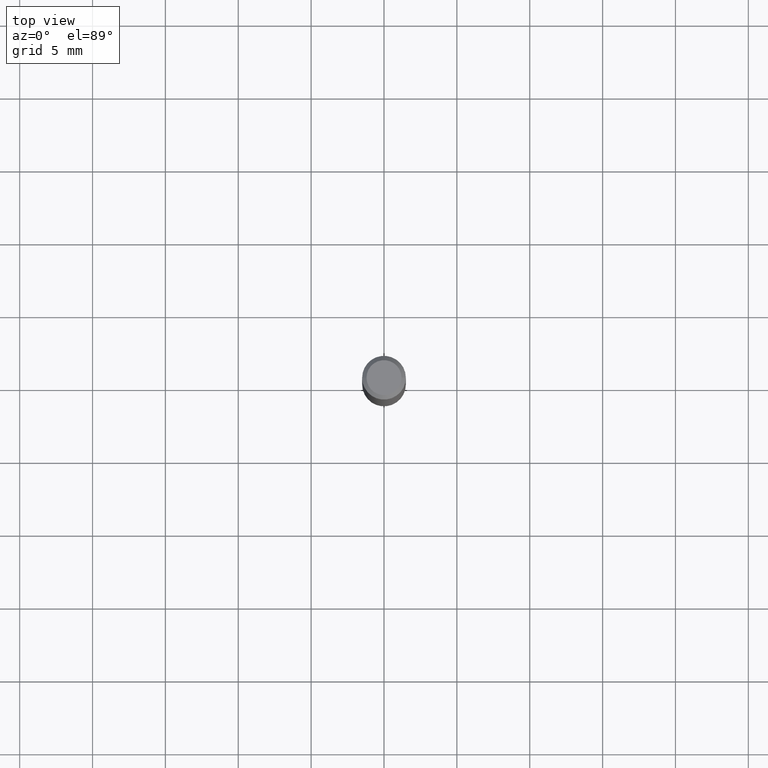
[diagram: clean part render]
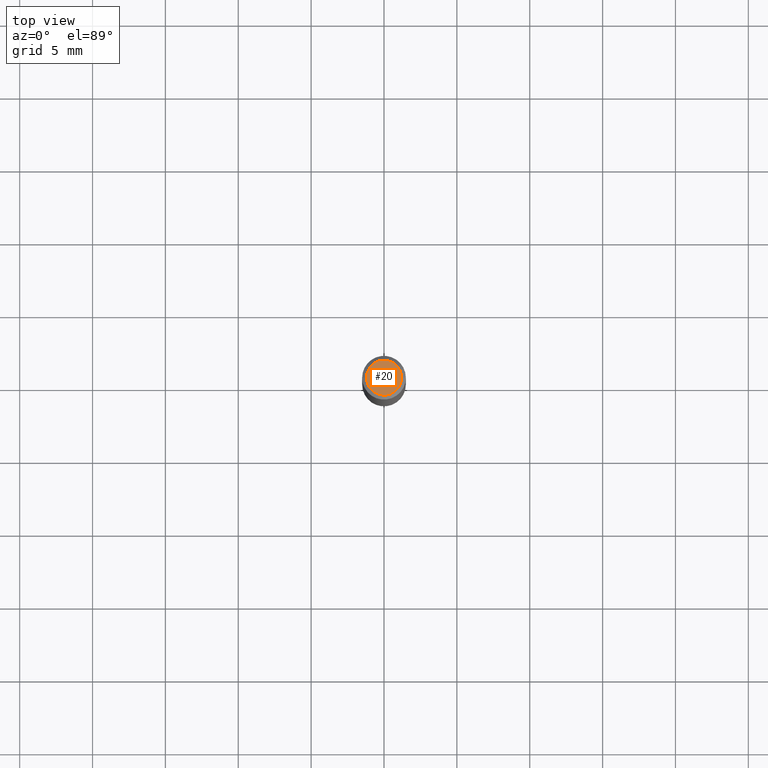
[diagram: same view with one face highlighted and labeled with its STEP entity id]
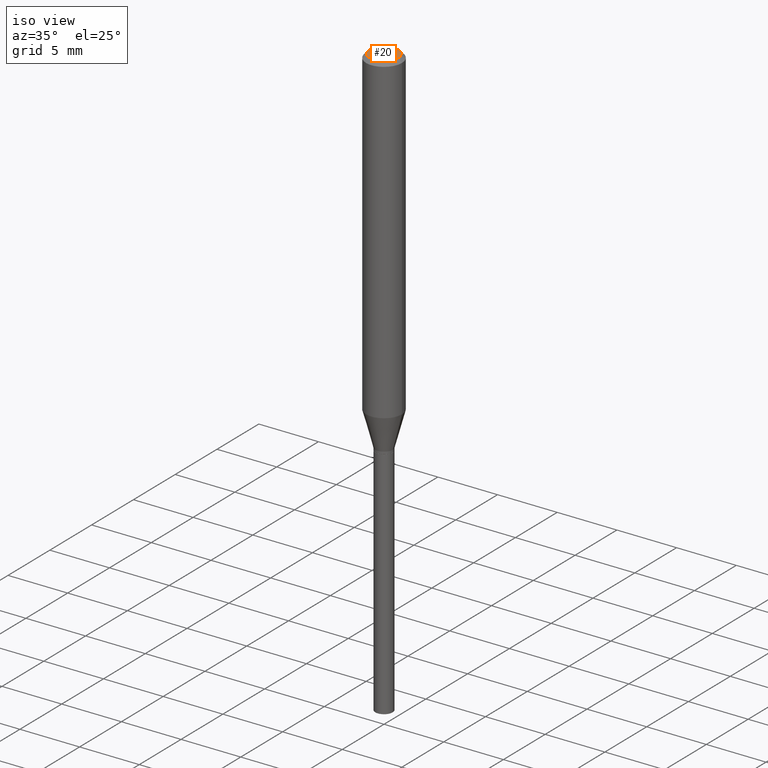
[diagram: same view with one face highlighted and labeled with its STEP entity id]
A machine part, top view. The second image highlights one B-rep face of the part: STEP entity #20.
A second angle (iso view) of the same face is appended — the face is thin or edge-on in the first view.
In plain terms, the highlighted planar face has unit normal (0, -0, -1).
Its self-contained STEP definition (entity closure, byte-faithful):
#17 = DIRECTION ( 'NONE',  ( 1.000000000000000000, -6.982962677686266711E-15, 4.876185090822587894E-29 ) ) ;
#20 = ADVANCED_FACE ( 'NONE', ( #210 ), #358, .F. ) ;
#46 = CARTESIAN_POINT ( 'NONE',  ( 0.04724000000000000421, -3.852183633974369345E-16, -3.380025165621689721E-19 ) ) ;
#80 = CARTESIAN_POINT ( 'NONE',  ( 8.265746106709734507E-48, -1.180129479067563789E-33, -3.380025165646692144E-19 ) ) ;
#95 = CARTESIAN_POINT ( 'NONE',  ( 8.265746106709734507E-48, -1.180129479067563789E-33, -3.380025165646692144E-19 ) ) ;
#102 = DIRECTION ( 'NONE',  ( -2.445468806185136597E-29, 3.491481338843145583E-15, 1.000000000000000000 ) ) ;
#103 = EDGE_LOOP ( 'NONE', ( #280, #390 ) ) ;
#131 = DIRECTION ( 'NONE',  ( -1.000000000000000000, 6.982962677686265922E-15, -4.876176775795935793E-29 ) ) ;
#151 = DIRECTION ( 'NONE',  ( 1.000000000000000000, -6.982962677686266711E-15, 4.876185090822587894E-29 ) ) ;
#166 = EDGE_CURVE ( 'NONE', #212, #476, #206, .T. ) ;
#199 = DIRECTION ( 'NONE',  ( -2.445468806185136597E-29, 3.491481338843145583E-15, 1.000000000000000000 ) ) ;
#206 = CIRCLE ( 'NONE', #279, 0.04724000000000000421 ) ;
#208 = CARTESIAN_POINT ( 'NONE',  ( 4.132873053354867254E-48, -5.900647395337818946E-34, -1.690012582823346072E-19 ) ) ;
#210 = FACE_OUTER_BOUND ( 'NONE', #103, .T. ) ;
#212 = VERTEX_POINT ( 'NONE', #46 ) ;
#220 = AXIS2_PLACEMENT_3D ( 'NONE', #95, #102, #17 ) ;
#260 = CARTESIAN_POINT ( 'NONE',  ( -0.04724000000000000421, 3.504923541997677355E-16, -3.380025165670481712E-19 ) ) ;
#279 = AXIS2_PLACEMENT_3D ( 'NONE', #80, #199, #151 ) ;
#280 = ORIENTED_EDGE ( 'NONE', *, *, #346, .T. ) ;
#319 = DIRECTION ( 'NONE',  ( 2.438088387897960049E-29, -3.491481338843145188E-15, -1.000000000000000000 ) ) ;
#336 = AXIS2_PLACEMENT_3D ( 'NONE', #208, #319, #131 ) ;
#346 = EDGE_CURVE ( 'NONE', #476, #212, #379, .T. ) ;
#358 = PLANE ( 'NONE',  #336 ) ;
#379 = CIRCLE ( 'NONE', #220, 0.04724000000000000421 ) ;
#390 = ORIENTED_EDGE ( 'NONE', *, *, #166, .T. ) ;
#476 = VERTEX_POINT ( 'NONE', #260 ) ;